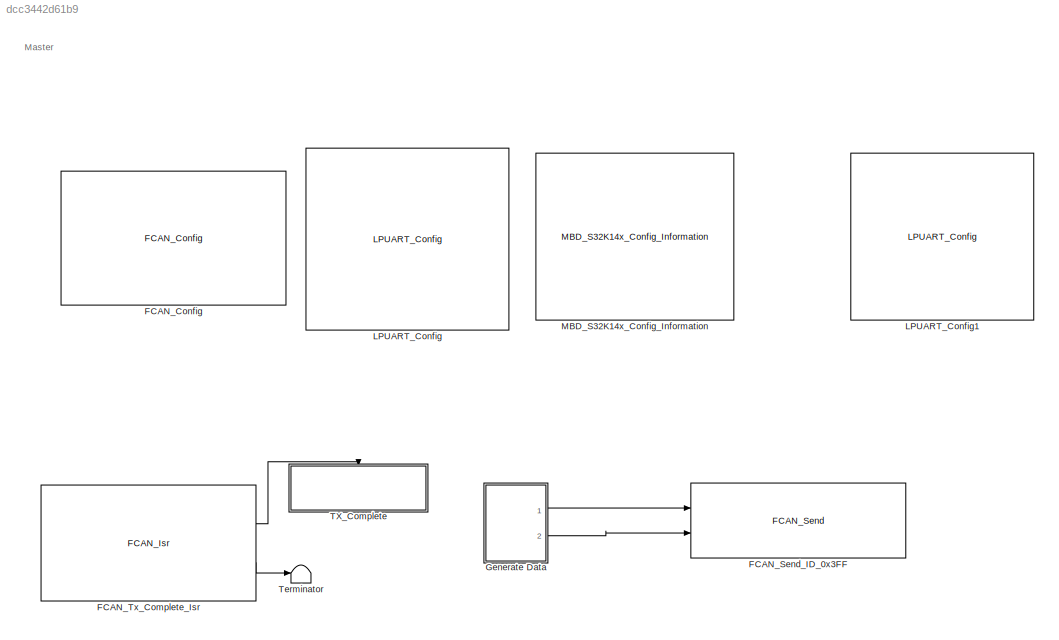
MODEL slx_dcc3442d61b9
KIND model
CONFIG AbsTol = auto
CONFIG EnableMultiTasking = on
CONFIG FixedStep = 0.5
CONFIG InitFcn = mbd_s32k14_consistency_checks(bdroot(gcs));
CONFIG MaxStep = auto
CONFIG MinStep = auto
CONFIG RelTol = 1e-3
CONFIG SampleTimeConstraint = Unconstrained
CONFIG Solver = FixedStepDiscrete
CONFIG SolverName = FixedStepDiscrete
CONFIG StartTime = 0.0
CONFIG StopTime = 10.0
BLOCK [Reference] FCAN_Config  REF=mbd_s32k14_ec_toolbox/S32K14x/Communication Blocks/Flex CAN Blocks/FCAN_Config
  Ports = []
  Priority = 1
  SourceBlock = mbd_s32k14_ec_toolbox/S32K14x/Communication Blocks/Flex CAN Blocks/FCAN_Config
  SourceType = fcan_s32k14_config
BLOCK [Reference] FCAN_Send_ID_0x3FF  REF=mbd_s32k14_ec_toolbox/S32K14x/Communication Blocks/Flex CAN Blocks/FCAN_Send
  Ports = [2]
  Priority = 2
  SourceBlock = mbd_s32k14_ec_toolbox/S32K14x/Communication Blocks/Flex CAN Blocks/FCAN_Send
  SourceType = fcan_s32k14_send
BLOCK [Reference] FCAN_Tx_Complete_Isr  REF=mbd_s32k14_ec_toolbox/S32K14x/Communication Blocks/Flex CAN Blocks/FCAN_Isr
  Ports = [0, 2]
  SourceBlock = mbd_s32k14_ec_toolbox/S32K14x/Communication Blocks/Flex CAN Blocks/FCAN_Isr
  SourceType = fcan_s32k14_isr
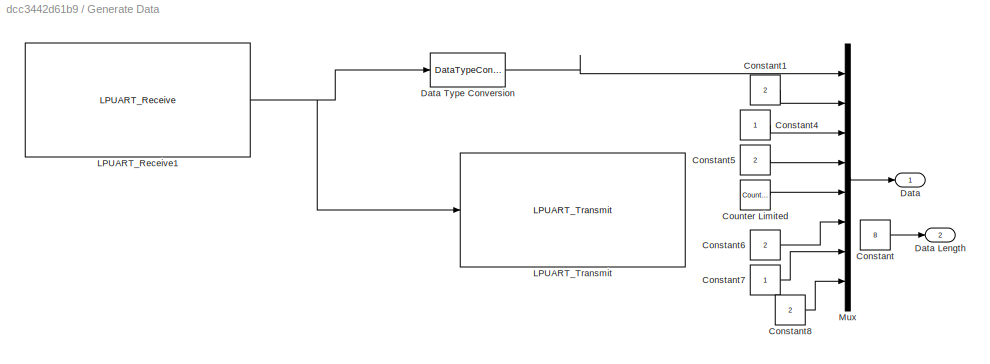
BLOCK [SubSystem] Generate Data
  Ports = [0, 2]
  RequestExecContextInheritance = off
BLOCK [Constant] Generate Data/Constant
  OutDataTypeStr = uint8
  Value = 8
BLOCK [Constant] Generate Data/Constant1
  OutDataTypeStr = uint8
  Value = 2
BLOCK [Constant] Generate Data/Constant4
  OutDataTypeStr = uint8
BLOCK [Constant] Generate Data/Constant5
  OutDataTypeStr = uint8
  Value = 2
BLOCK [Constant] Generate Data/Constant6
  OutDataTypeStr = uint8
  Value = 2
BLOCK [Constant] Generate Data/Constant7
  OutDataTypeStr = uint8
BLOCK [Constant] Generate Data/Constant8
  OutDataTypeStr = uint8
  Value = 2
BLOCK [Reference] Generate Data/Counter Limited  REF=simulink/Sources/Counter
Limited
  Ports = [0, 1]
  SourceBlock = simulink/Sources/Counter\nLimited
  SourceProductBaseCode = SL
  SourceProductName = Simulink
  SourceType = Counter Limited
BLOCK [Outport] Generate Data/Data
  IconDisplay = Port number
BLOCK [Outport] Generate Data/Data Length
  IconDisplay = Port number
  Port = 2
BLOCK [DataTypeConversion] Generate Data/Data Type Conversion
  OutDataTypeStr = uint8
  RndMeth = Floor
  SaturateOnIntegerOverflow = off
BLOCK [Reference] Generate Data/LPUART_Receive1  REF=mbd_s32k14_ec_toolbox/S32K14x/Communication Blocks/UART Blocks/LPUART_Receive
  Ports = [0, 1]
  SourceBlock = mbd_s32k14_ec_toolbox/S32K14x/Communication Blocks/UART Blocks/LPUART_Receive
  SourceType = lpuart_s32k14_receive
BLOCK [Reference] Generate Data/LPUART_Transmit  REF=mbd_s32k14_ec_toolbox/S32K14x/Communication Blocks/UART Blocks/LPUART_Transmit
  Ports = [1]
  SourceBlock = mbd_s32k14_ec_toolbox/S32K14x/Communication Blocks/UART Blocks/LPUART_Transmit
  SourceType = lpuart_s32k14_transmit
BLOCK [Mux] Generate Data/Mux
  DisplayOption = bar
  Inputs = 8
  Ports = [8, 1]
BLOCK [Reference] LPUART_Config  REF=mbd_s32k14_ec_toolbox/S32K14x/Communication Blocks/UART Blocks/LPUART_Config
  Ports = []
  Priority = 2
  SourceBlock = mbd_s32k14_ec_toolbox/S32K14x/Communication Blocks/UART Blocks/LPUART_Config
  SourceType = lpuart_s32k14_config
BLOCK [Reference] LPUART_Config1  REF=mbd_s32k14_ec_toolbox/S32K14x/Communication Blocks/UART Blocks/LPUART_Config
  Ports = []
  Priority = 2
  SourceBlock = mbd_s32k14_ec_toolbox/S32K14x/Communication Blocks/UART Blocks/LPUART_Config
  SourceType = lpuart_s32k14_config
BLOCK [Reference] MBD_S32K14x_Config_Information  REF=mbd_s32k14_ec_toolbox/S32K14x/MBD_S32K14x_Config_Information
  Ports = []
  SourceBlock = mbd_s32k14_ec_toolbox/S32K14x/MBD_S32K14x_Config_Information
  SourceType = MBDTBX_EC_S32K14
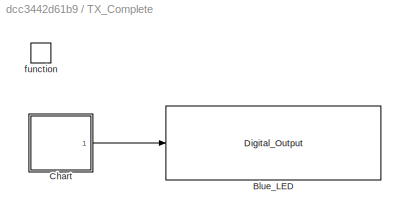
BLOCK [SubSystem] TX_Complete
  Ports = [0, 0, 0, 1]
  RTWSystemCode = Nonreusable function
  RequestExecContextInheritance = off
  TreatAsAtomicUnit = on
BLOCK [Reference] TX_Complete/Blue_LED  REF=mbd_s32k14_ec_toolbox/S32K14x/Peripheral Interface Blocks/Digital_Output
  Ports = [1]
  SourceBlock = mbd_s32k14_ec_toolbox/S32K14x/Peripheral Interface Blocks/Digital_Output
  SourceType = gpio_s32k14_output
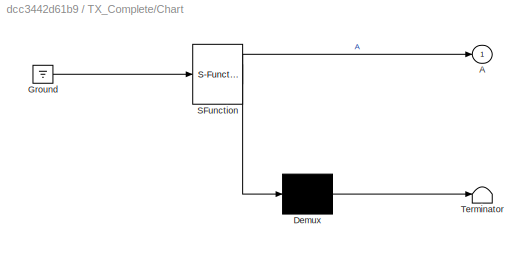
BLOCK [SubSystem] TX_Complete/Chart
  ErrorFcn = Stateflow.Translate.translate
  PermitHierarchicalResolution = ExplicitOnly
  Ports = [0, 1]
  RequestExecContextInheritance = off
  SFBlockType = Chart
  TreatAsAtomicUnit = on
BLOCK [Outport] TX_Complete/Chart/ A
  IconDisplay = Port number
BLOCK [Demux] TX_Complete/Chart/ Demux 
  Outputs = 1
  Ports = [1, 1]
BLOCK [Ground] TX_Complete/Chart/ Ground 
BLOCK [S-Function] TX_Complete/Chart/ SFunction 
  EnableBusSupport = on
  FunctionName = sf_sfun
  PortCounts = [1 2]
  Ports = [1, 2]
  SFcnIsStateOwnerBlock = off
  SFunctionDeploymentMode = off
  Tag = Stateflow S-Function Lidar_based_Motor_Control_Master 5
BLOCK [Terminator] TX_Complete/Chart/ Terminator 
BLOCK [TriggerPort] TX_Complete/function
  Ports = []
  StatesWhenEnabling = held
  TriggerType = function-call
  VariantControl = Variant
BLOCK [Terminator] Terminator
ANNOTATION (root): Master
LINE FCAN_Tx_Complete_Isr:1 -> TX_Complete:trigger
LINE FCAN_Tx_Complete_Isr:2 -> Terminator:1
LINE Generate Data/Constant1:1 -> Generate Data/Mux:2
LINE Generate Data/Constant4:1 -> Generate Data/Mux:3
LINE Generate Data/Constant5:1 -> Generate Data/Mux:4
LINE Generate Data/Constant6:1 -> Generate Data/Mux:6
LINE Generate Data/Constant7:1 -> Generate Data/Mux:7
LINE Generate Data/Constant8:1 -> Generate Data/Mux:8
LINE Generate Data/Constant:1 -> Generate Data/Data Length:1
LINE Generate Data/Counter Limited:1 -> Generate Data/Mux:5
LINE Generate Data/Data Type Conversion:1 -> Generate Data/Mux:1
NET Generate Data/LPUART_Receive1:1 -> Generate Data/Data Type Conversion:1, Generate Data/LPUART_Transmit:1
LINE Generate Data/Mux:1 -> Generate Data/Data:1
LINE Generate Data:1 -> FCAN_Send_ID_0x3FF:1
LINE Generate Data:2 -> FCAN_Send_ID_0x3FF:2
LINE TX_Complete/Chart:1 -> TX_Complete/Blue_LED:1
note: NET lines group one-source signal fan-out (src -> all destinations, sorted); 1:1 wires keep LINE
CHART TX_Complete/Chart states=2 transitions=3
  STATE_LABEL 'A'
  STATE_LABEL 'A1'
